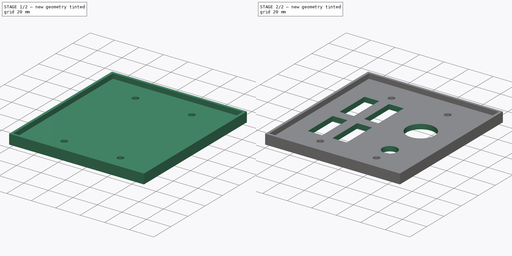
[diagram: build sequence overview — one tinted view per stage of 2, left to right]
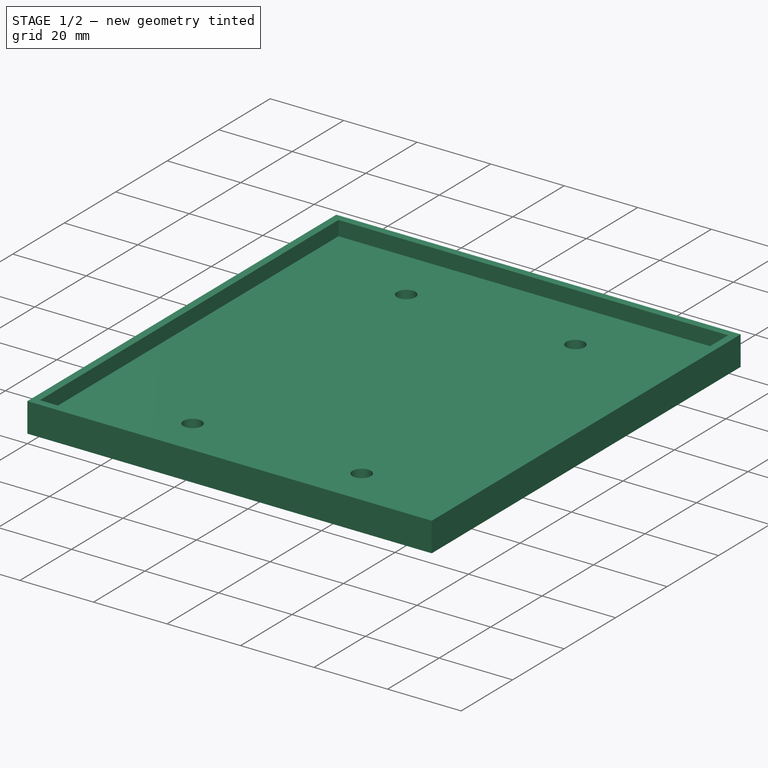
[diagram: stage 1 of 2 — iso view after this stage's code; geometry added in this stage tinted green]
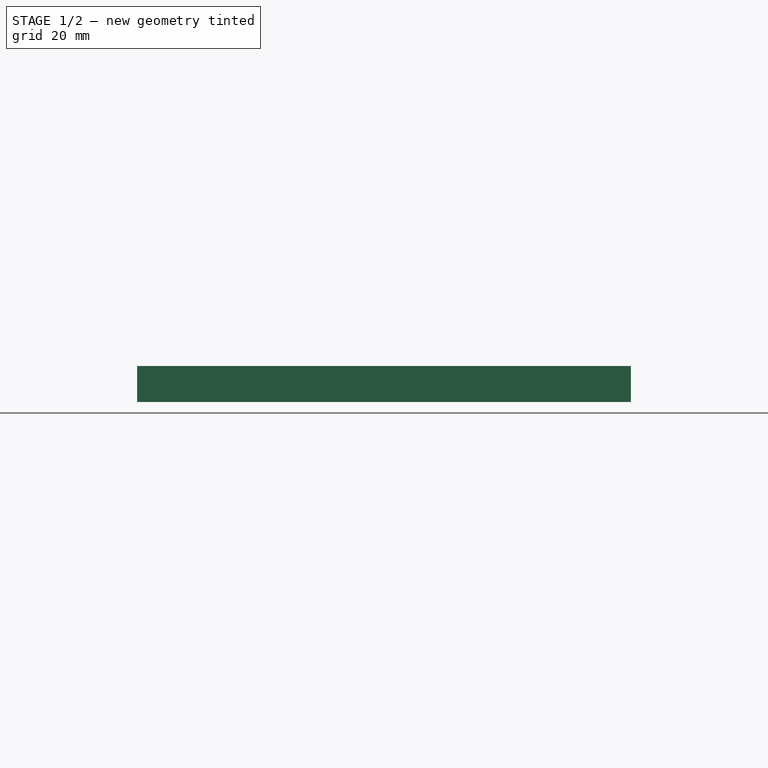
[diagram: stage 1 of 2 — front view after this stage's code; geometry added in this stage tinted green]
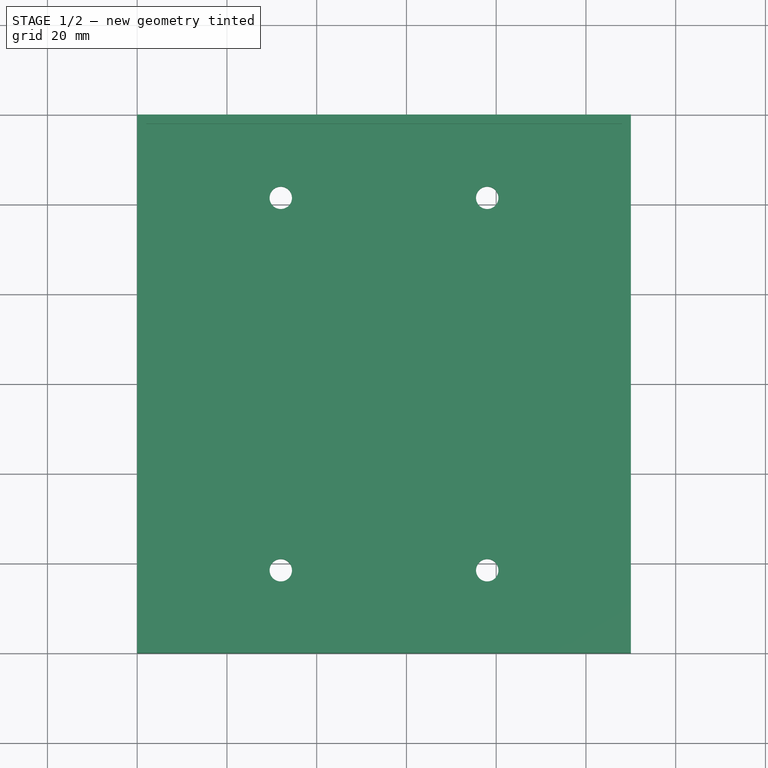
[diagram: stage 1 of 2 — top view after this stage's code; geometry added in this stage tinted green]
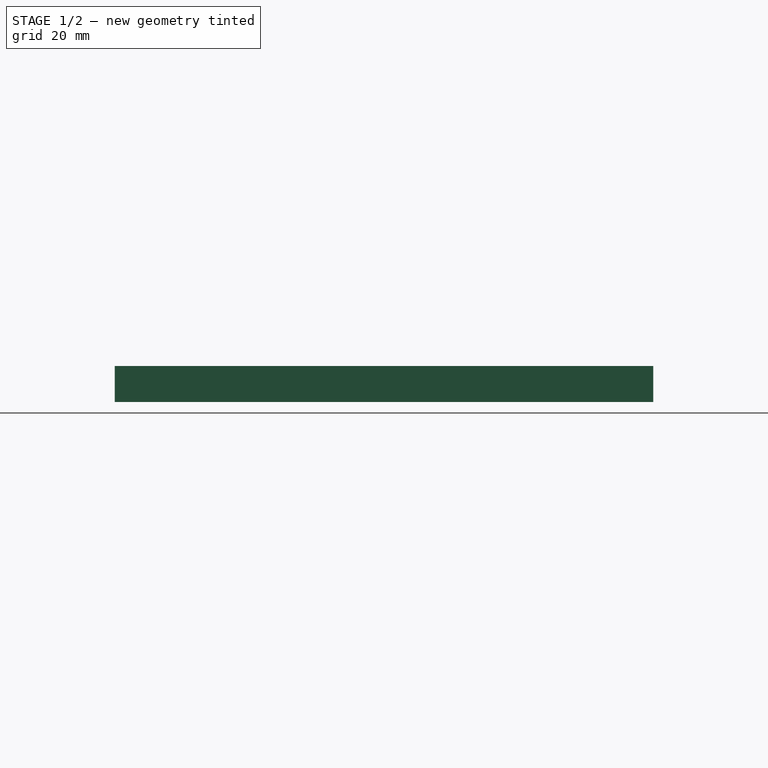
[diagram: stage 1 of 2 — right view after this stage's code; geometry added in this stage tinted green]
FCSTD DOCUMENT  (FreeCAD 0.15R4671 (Git))
Label: ControlPanel2
License: All rights reserved
LicenseURL: http://en.wikipedia.org/wiki/All_rights_reserved
objects: Sketcher::SketchObject×3, PartDesign::Pocket×2, PartDesign::Pad×1
note: 9 computed .brp shape members not serialized (recipe doc carries the construction recipe); baked Part::Feature solids carry a one-line shape summary decoded from their .brp

FEATURE [Sketcher::SketchObject] Sketch
  sketch-geometry (8):
    g0: LineSegment StartX=0 StartY=0 StartZ=0 EndX=110 EndY=0 EndZ=0
    g1: LineSegment StartX=110 StartY=0 StartZ=0 EndX=110 EndY=120 EndZ=0
    g2: LineSegment StartX=110 StartY=120 StartZ=0 EndX=0 EndY=120 EndZ=0
    g3: LineSegment StartX=0 StartY=120 StartZ=0 EndX=0 EndY=0 EndZ=0
    g4: Circle CenterX=32 CenterY=101.5 CenterZ=0 NormalX=0 NormalY=0 NormalZ=1 Radius=2.5
    g5: Circle CenterX=78 CenterY=101.5 CenterZ=0 NormalX=0 NormalY=0 NormalZ=1 Radius=2.5
    g6: Circle CenterX=32 CenterY=18.5 CenterZ=0 NormalX=0 NormalY=0 NormalZ=1 Radius=2.5
    g7: Circle CenterX=78 CenterY=18.5 CenterZ=0 NormalX=0 NormalY=0 NormalZ=1 Radius=2.5
  constraints (23):
    c: Coincident(g0,g1)
    c: Coincident(g1,g2)
    c: Coincident(g2,g3)
    c: Coincident(g3,g0)
    c: Horizontal(g0)
    c: Horizontal(g2)
    c: Vertical(g1)
    c: Vertical(g3)
    c: Coincident(g0,g-1)
    c: DistanceY(g3) = -120
    c: DistanceX(g0) = 110
    c: DistanceX(g6,g7) = 46
    c: DistanceX(g4,g5) = 46
    c: DistanceY(g4,g6) = -83
    c: DistanceY(g5,g7) = -83
    c: DistanceY(g7,g0) = -18.5
    c: DistanceY(g-1,g6) = 18.5
    c: DistanceX(g4,g2) = -32
    c: DistanceX(g-1,g6) = 32
    c: Equal(g5,g4)
    c: Equal(g4,g6)
    c: Equal(g6,g7)
    c: Radius(g4) = 2.5
FEATURE [PartDesign::Pad] Pad
  Length = 8
  Length2 = 100
  Sketch = -> Sketch
  Type = 0
FEATURE [Sketcher::SketchObject] Sketch001
  Placement = pos=(0,0,8) rot=(0,0,1;0rad)
  Support = -> Pad [Face10]
  sketch-geometry (4):
    g0: LineSegment StartX=2 StartY=2 StartZ=0 EndX=108 EndY=2 EndZ=0
    g1: LineSegment StartX=108 StartY=2 StartZ=0 EndX=108 EndY=118 EndZ=0
    g2: LineSegment StartX=108 StartY=118 StartZ=0 EndX=2 EndY=118 EndZ=0
    g3: LineSegment StartX=2 StartY=118 StartZ=0 EndX=2 EndY=2 EndZ=0
  constraints (12):
    c: Coincident(g0,g1)
    c: Coincident(g1,g2)
    c: Coincident(g2,g3)
    c: Coincident(g3,g0)
    c: Horizontal(g0)
    c: Horizontal(g2)
    c: Vertical(g1)
    c: Vertical(g3)
    c: DistanceX(g0) = 106
    c: DistanceY(g1) = 116
    c: DistanceY(g-1,g0) = 2
    c: DistanceX(g-1,g0) = 2
FEATURE [PartDesign::Pocket] Pocket
  Length = 4
  Sketch = -> Sketch001
  Type = 0
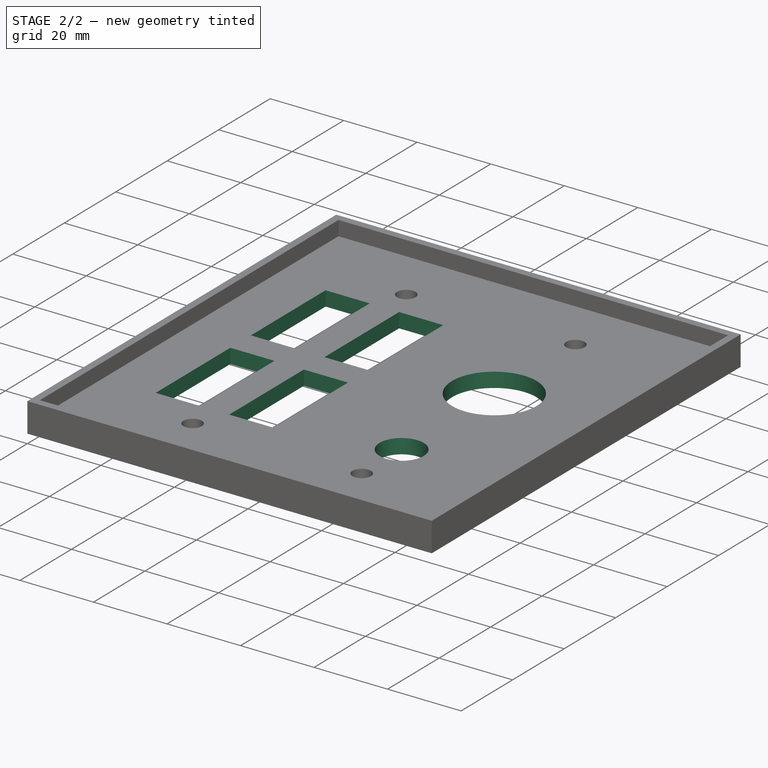
[diagram: stage 2 of 2 — iso view after this stage's code; geometry added in this stage tinted green]
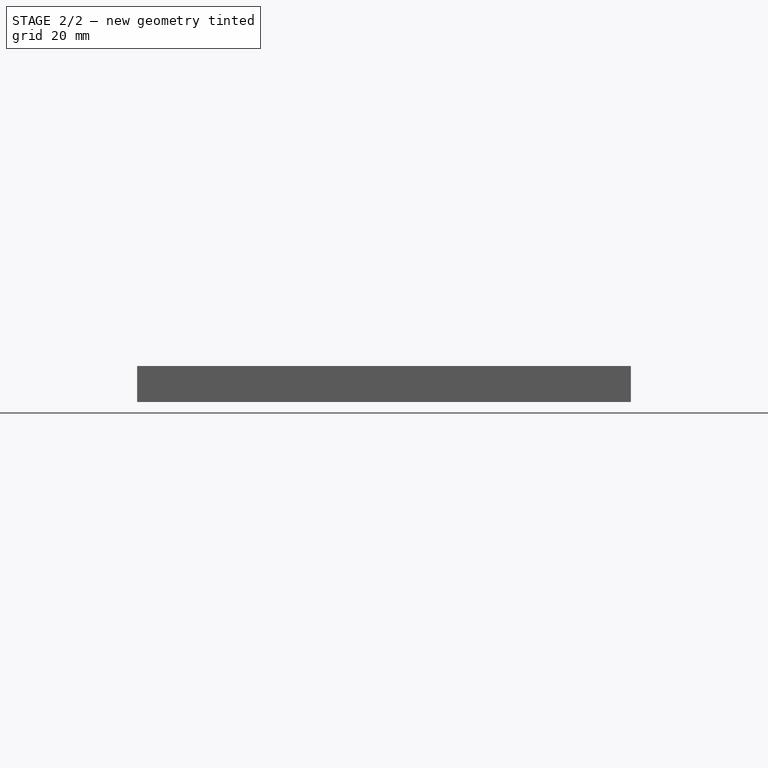
[diagram: stage 2 of 2 — front view after this stage's code; geometry added in this stage tinted green]
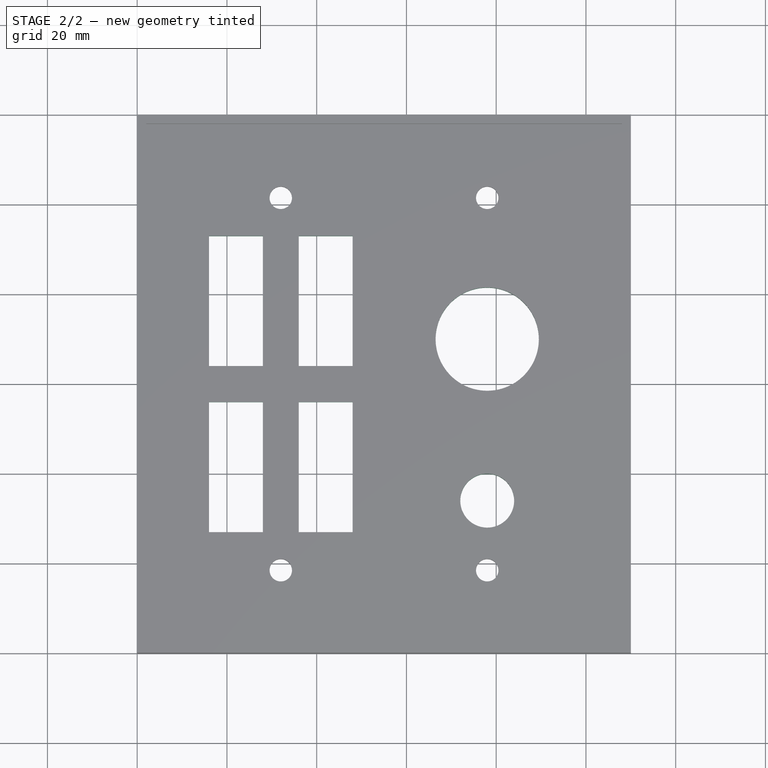
[diagram: stage 2 of 2 — top view after this stage's code; geometry added in this stage tinted green]
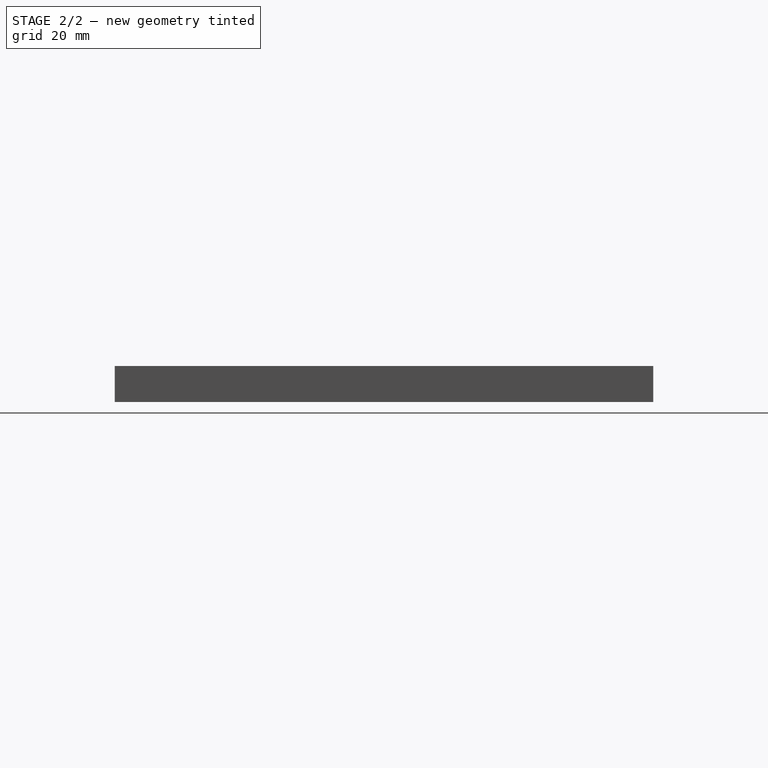
[diagram: stage 2 of 2 — right view after this stage's code; geometry added in this stage tinted green]
FEATURE [Sketcher::SketchObject] Sketch002
  Placement = pos=(0,0,0) rot=(1,0,0;3.14159rad)
  Support = -> Pocket [Face4]
  sketch-geometry (18):
    g0: LineSegment StartX=16 StartY=-27 StartZ=0 EndX=28 EndY=-27 EndZ=0
    g1: LineSegment StartX=28 StartY=-27 StartZ=0 EndX=28 EndY=-56 EndZ=0
    g2: LineSegment StartX=28 StartY=-56 StartZ=0 EndX=16 EndY=-56 EndZ=0
    g3: LineSegment StartX=16 StartY=-56 StartZ=0 EndX=16 EndY=-27 EndZ=0
    g4: LineSegment StartX=36 StartY=-27 StartZ=0 EndX=48 EndY=-27 EndZ=0
    g5: LineSegment StartX=48 StartY=-27 StartZ=0 EndX=48 EndY=-56 EndZ=0
    g6: LineSegment StartX=48 StartY=-56 StartZ=0 EndX=36 EndY=-56 EndZ=0
    g7: LineSegment StartX=36 StartY=-56 StartZ=0 EndX=36 EndY=-27 EndZ=0
    g8: LineSegment StartX=16 StartY=-93 StartZ=0 EndX=28 EndY=-93 EndZ=0
    g9: LineSegment StartX=28 StartY=-93 StartZ=0 EndX=28 EndY=-64 EndZ=0
    g10: LineSegment StartX=28 StartY=-64 StartZ=0 EndX=16 EndY=-64 EndZ=0
    g11: LineSegment StartX=16 StartY=-64 StartZ=0 EndX=16 EndY=-93 EndZ=0
    g12: LineSegment StartX=48 StartY=-93 StartZ=0 EndX=36 EndY=-93 EndZ=0
    g13: LineSegment StartX=36 StartY=-93 StartZ=0 EndX=36 EndY=-64 EndZ=0
    g14: LineSegment StartX=36 StartY=-64 StartZ=0 EndX=48 EndY=-64 EndZ=0
    g15: LineSegment StartX=48 StartY=-64 StartZ=0 EndX=48 EndY=-93 EndZ=0
    g16: Circle CenterX=78 CenterY=-70 CenterZ=0 NormalX=0 NormalY=0 NormalZ=1 Radius=11.5
    g17: Circle CenterX=78 CenterY=-34 CenterZ=0 NormalX=0 NormalY=0 NormalZ=1 Radius=6
  constraints (54):
    c: Coincident(g0,g1)
    c: Coincident(g1,g2)
    c: Coincident(g2,g3)
    c: Coincident(g3,g0)
    c: Horizontal(g0)
    c: Horizontal(g2)
    c: Vertical(g1)
    c: Vertical(g3)
    c: DistanceX(g0) = 12
    c: DistanceY(g3) = 29
    c: DistanceX(g-1,g0) = 16
    c: Coincident(g4,g5)
    c: Coincident(g5,g6)
    c: Coincident(g6,g7)
    c: Coincident(g7,g4)
    c: Horizontal(g4)
    c: Horizontal(g6)
    c: Vertical(g5)
    c: Vertical(g7)
    c: Coincident(g8,g9)
    c: Coincident(g9,g10)
    c: Coincident(g10,g11)
    c: Coincident(g11,g8)
    c: Horizontal(g8)
    c: Horizontal(g10)
    c: Vertical(g9)
    c: Vertical(g11)
    c: Coincident(g12,g13)
    c: Coincident(g13,g14)
    c: Coincident(g14,g15)
    c: Coincident(g15,g12)
    c: Horizontal(g12)
    c: Horizontal(g14)
    c: Vertical(g13)
    c: Vertical(g15)
    c: DistanceX(g4) = 12
    c: DistanceY(g5) = -29
    c: DistanceX(g14) = 12
    c: DistanceY(g15) = -29
    c: DistanceX(g10) = -12
    c: DistanceY(g9) = 29
    c: DistanceY(g2,g10) = -8
    c: DistanceY(g5,g14) = -8
    c: DistanceX(g0,g4) = 8
    c: DistanceX(g8,g12) = 8
    c: DistanceX(g-1,g8) = 16
    c: DistanceY(g-1,g0) = -27
    c: DistanceY(g-1,g4) = -27
    c: Radius(g16) = 11.5
    c: DistanceY(g-1,g16) = -70
    c: DistanceX(g-1,g16) = 78
    c: Radius(g17) = 6
    c: DistanceX(g-1,g17) = 78
    c: DistanceY(g-1,g17) = -34
FEATURE [PartDesign::Pocket] Pocket001
  Length = 5
  Sketch = -> Sketch002
  Type = 1
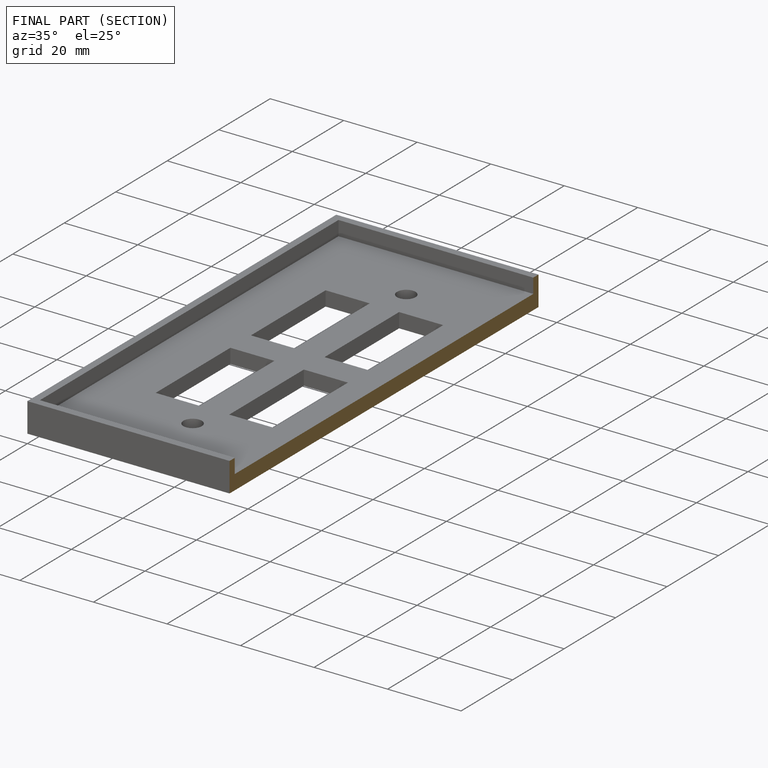
[diagram: finished part — half-section view (interior)]
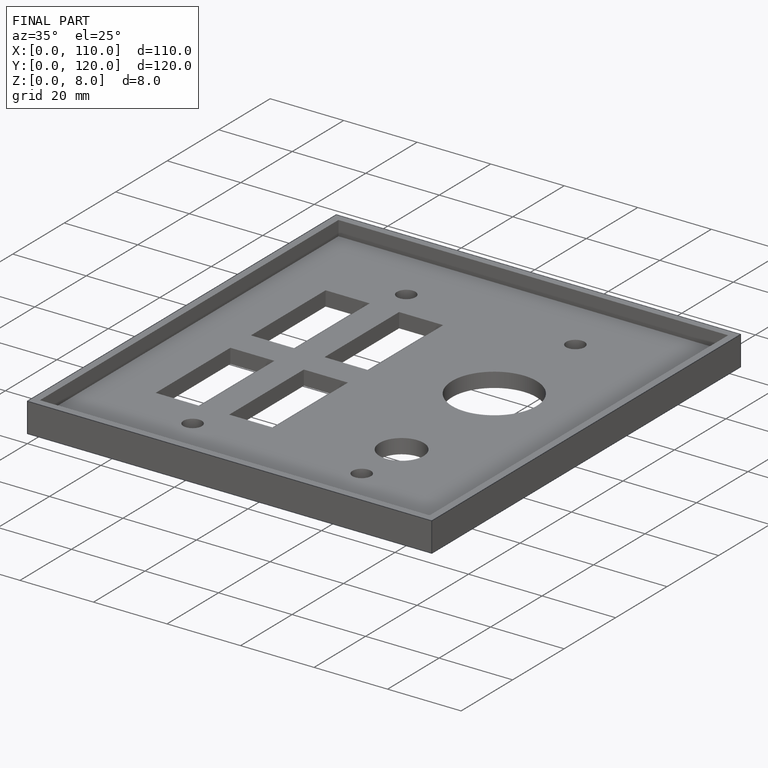
[diagram: finished part — iso view with bounding-box wireframe]
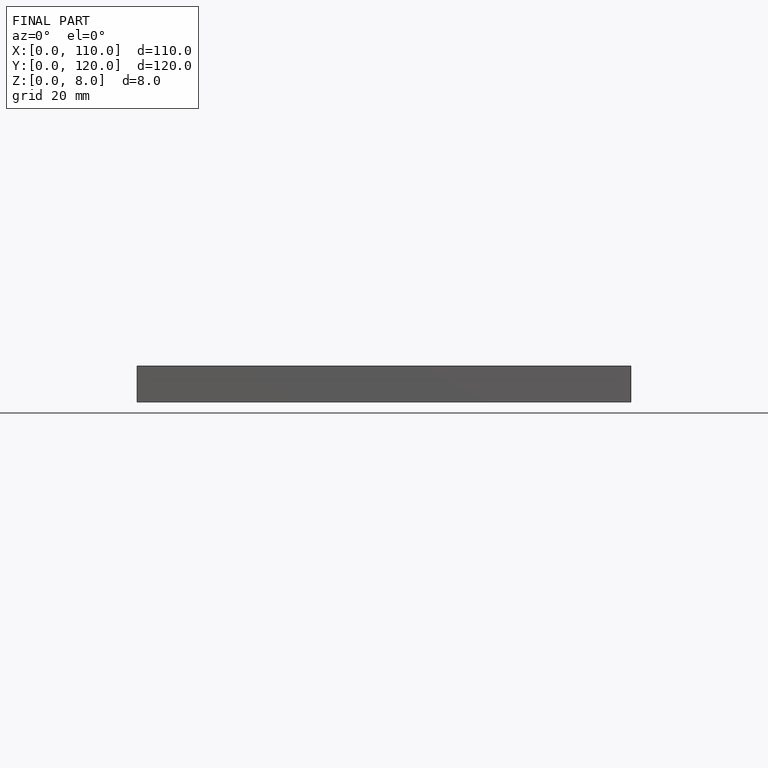
[diagram: finished part — front view with bounding-box wireframe]
